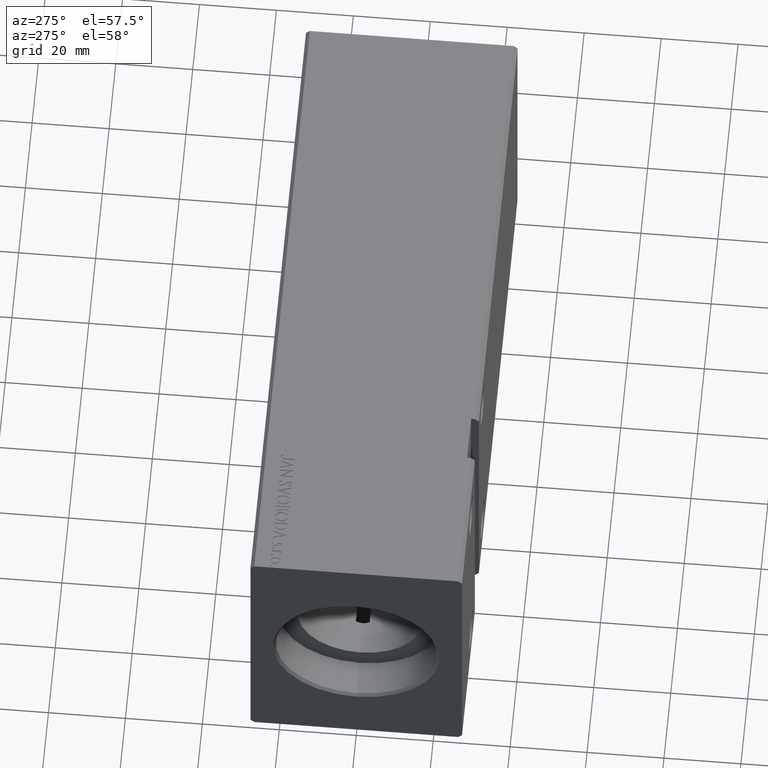
[diagram: clean part render]
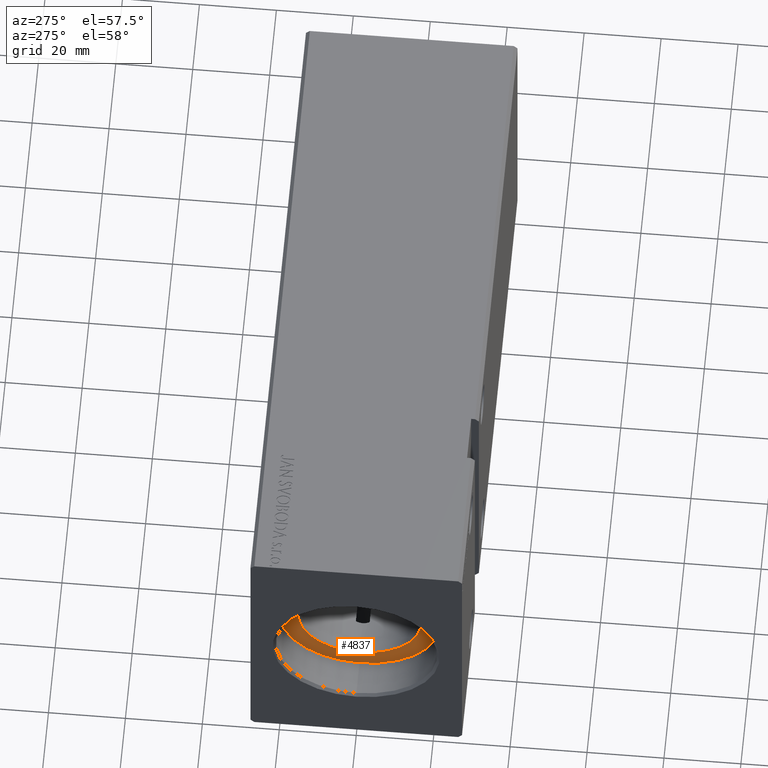
[diagram: same view with one face highlighted and labeled with its STEP entity id]
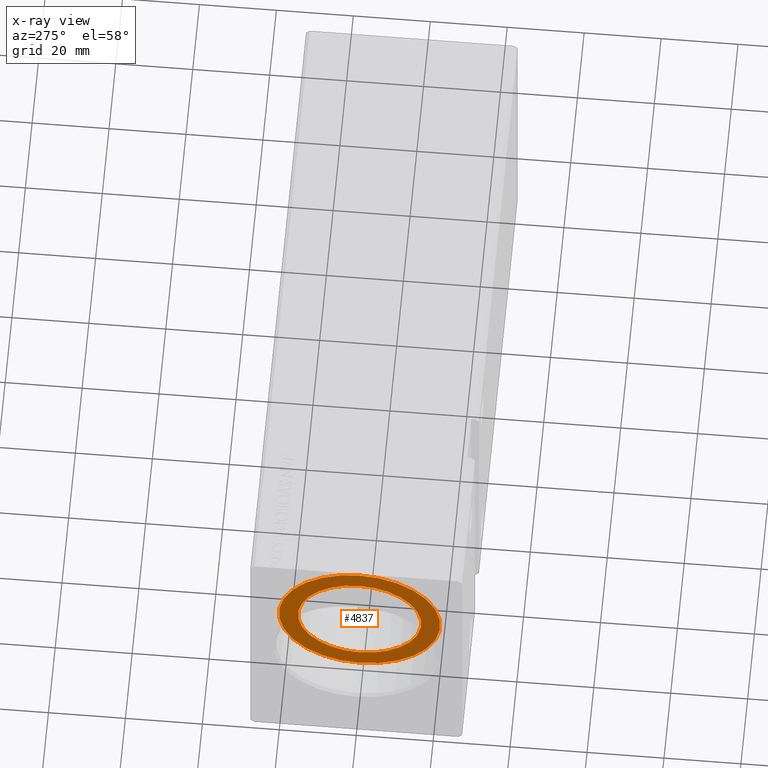
[diagram: x-ray of the same camera — body ghosted, the highlighted face saturated]
A machine part, auxiliary view. The second image highlights one B-rep face of the part: STEP entity #4837.
The next image is the same camera in x-ray: the body ghosted, the highlighted face saturated — about 0% of this face is hidden behind the body in this view.
In plain terms, the highlighted planar face has unit normal (-1, 0, 0).
Its self-contained STEP definition (entity closure, byte-faithful):
#1257 = CIRCLE ( 'NONE', #9513, 21.00000000000000000 ) ;
#1869 = DIRECTION ( 'NONE',  ( 0.000000000000000000, 0.000000000000000000, 1.000000000000000000 ) ) ;
#1993 = FACE_BOUND ( 'NONE', #28540, .T. ) ;
#2019 = AXIS2_PLACEMENT_3D ( 'NONE', #30489, #9548, #21698 ) ;
#3050 = CARTESIAN_POINT ( 'NONE',  ( 10.00000000000000888, 0.000000000000000000, 0.000000000000000000 ) ) ;
#4837 = ADVANCED_FACE ( 'NONE', ( #1993, #23303 ), #28901, .T. ) ;
#4857 = CIRCLE ( 'NONE', #6860, 21.00000000000000000 ) ;
#5937 = DIRECTION ( 'NONE',  ( 0.000000000000000000, 0.000000000000000000, 1.000000000000000000 ) ) ;
#6469 = ORIENTED_EDGE ( 'NONE', *, *, #21794, .T. ) ;
#6860 = AXIS2_PLACEMENT_3D ( 'NONE', #38356, #29168, #1869 ) ;
#7020 = EDGE_CURVE ( 'NONE', #37067, #9034, #11691, .T. ) ;
#7108 = CIRCLE ( 'NONE', #2019, 16.00000000000000000 ) ;
#7269 = VERTEX_POINT ( 'NONE', #9767 ) ;
#9034 = VERTEX_POINT ( 'NONE', #11076 ) ;
#9513 = AXIS2_PLACEMENT_3D ( 'NONE', #33831, #36647, #5937 ) ;
#9548 = DIRECTION ( 'NONE',  ( -1.000000000000000000, 0.000000000000000000, 0.000000000000000000 ) ) ;
#9767 = CARTESIAN_POINT ( 'NONE',  ( 10.00000000000000000, 0.000000000000000000, 21.00000000000000000 ) ) ;
#11076 = CARTESIAN_POINT ( 'NONE',  ( 10.00000000000000888, 1.959434878635765131E-15, -16.00000000000000000 ) ) ;
#11158 = CARTESIAN_POINT ( 'NONE',  ( 10.00000000000000000, 0.000000000000000000, 0.000000000000000000 ) ) ;
#11644 = DIRECTION ( 'NONE',  ( 0.000000000000000000, 0.000000000000000000, 1.000000000000000000 ) ) ;
#11691 = CIRCLE ( 'NONE', #23119, 16.00000000000000000 ) ;
#15574 = ORIENTED_EDGE ( 'NONE', *, *, #31983, .T. ) ;
#15716 = VERTEX_POINT ( 'NONE', #39115 ) ;
#18626 = ORIENTED_EDGE ( 'NONE', *, *, #38659, .F. ) ;
#19699 = EDGE_LOOP ( 'NONE', ( #6469, #15574 ) ) ;
#19880 = AXIS2_PLACEMENT_3D ( 'NONE', #11158, #35485, #22711 ) ;
#21698 = DIRECTION ( 'NONE',  ( 0.000000000000000000, 0.000000000000000000, 1.000000000000000000 ) ) ;
#21794 = EDGE_CURVE ( 'NONE', #7269, #15716, #4857, .T. ) ;
#21887 = CARTESIAN_POINT ( 'NONE',  ( 10.00000000000000888, 0.000000000000000000, 16.00000000000000000 ) ) ;
#22711 = DIRECTION ( 'NONE',  ( 0.000000000000000000, 0.000000000000000000, 1.000000000000000000 ) ) ;
#23119 = AXIS2_PLACEMENT_3D ( 'NONE', #3050, #23983, #11644 ) ;
#23303 = FACE_OUTER_BOUND ( 'NONE', #19699, .T. ) ;
#23983 = DIRECTION ( 'NONE',  ( -1.000000000000000000, 0.000000000000000000, 0.000000000000000000 ) ) ;
#28540 = EDGE_LOOP ( 'NONE', ( #37477, #18626 ) ) ;
#28901 = PLANE ( 'NONE',  #19880 ) ;
#29168 = DIRECTION ( 'NONE',  ( -1.000000000000000000, 0.000000000000000000, 0.000000000000000000 ) ) ;
#30489 = CARTESIAN_POINT ( 'NONE',  ( 10.00000000000000888, 0.000000000000000000, 0.000000000000000000 ) ) ;
#31983 = EDGE_CURVE ( 'NONE', #15716, #7269, #1257, .T. ) ;
#33831 = CARTESIAN_POINT ( 'NONE',  ( 10.00000000000000000, 0.000000000000000000, 0.000000000000000000 ) ) ;
#35485 = DIRECTION ( 'NONE',  ( -1.000000000000000000, 0.000000000000000000, 0.000000000000000000 ) ) ;
#36647 = DIRECTION ( 'NONE',  ( -1.000000000000000000, 0.000000000000000000, 0.000000000000000000 ) ) ;
#37067 = VERTEX_POINT ( 'NONE', #21887 ) ;
#37477 = ORIENTED_EDGE ( 'NONE', *, *, #7020, .F. ) ;
#38356 = CARTESIAN_POINT ( 'NONE',  ( 10.00000000000000000, 0.000000000000000000, 0.000000000000000000 ) ) ;
#38659 = EDGE_CURVE ( 'NONE', #9034, #37067, #7108, .T. ) ;
#39115 = CARTESIAN_POINT ( 'NONE',  ( 10.00000000000000000, 2.571758278209441661E-15, -21.00000000000000000 ) ) ;